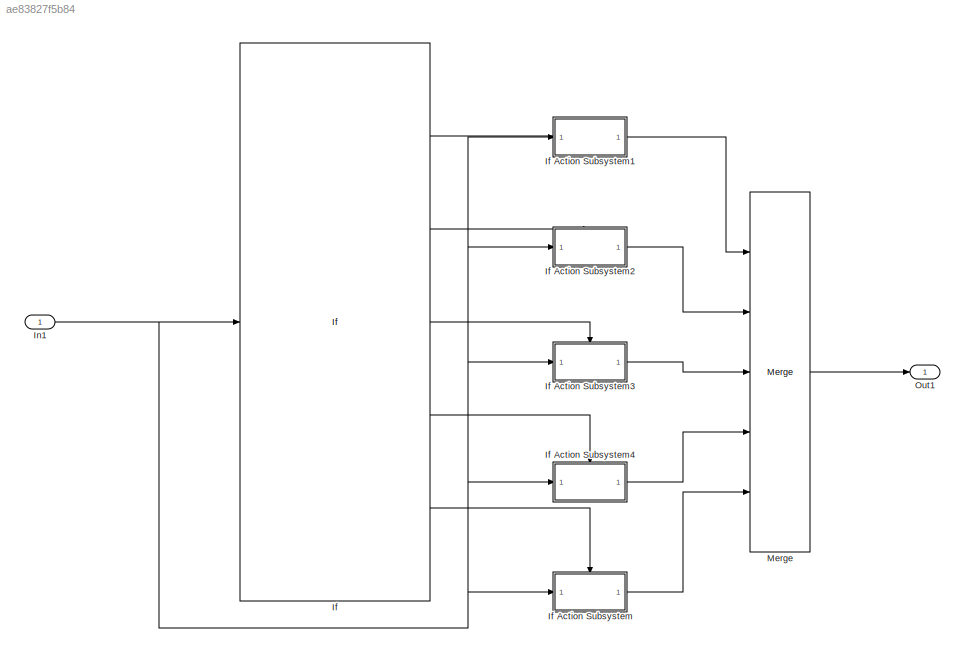
MODEL slx_ae83827f5b84
KIND model
CONFIG AbsTol = auto
CONFIG FixedStep = auto
CONFIG MaxStep = auto
CONFIG MinStep = auto
CONFIG RelTol = 1e-3
CONFIG SampleTimeConstraint = Unconstrained
CONFIG Solver = VariableStepAuto
CONFIG SolverMode = Auto
CONFIG SolverName = VariableStepAuto
CONFIG StartTime = 0.0
CONFIG StopTime = 10.0
BLOCK [If] If
  ElseIfExpressions = u1 > 75 , u1 > 65, u1 > 50
  IfExpression = u1 > 90
  Ports = [1, 5]
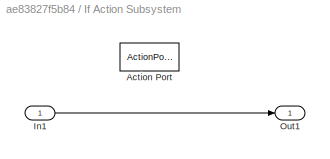
BLOCK [SubSystem] If Action Subsystem
  Ports = [1, 1, 0, 0, 0, 0, 0, 1]
  RequestExecContextInheritance = off
  TreatAsAtomicUnit = on
  Variant = off
BLOCK [ActionPort] If Action Subsystem/Action Port
  ActionType = else
BLOCK [Inport] If Action Subsystem/In1
  IconDisplay = Port number
BLOCK [Outport] If Action Subsystem/Out1
  IconDisplay = Port number
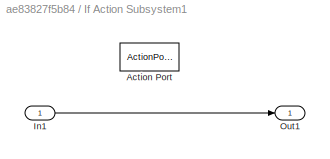
BLOCK [SubSystem] If Action Subsystem1
  Ports = [1, 1, 0, 0, 0, 0, 0, 1]
  RequestExecContextInheritance = off
  TreatAsAtomicUnit = on
  Variant = off
BLOCK [ActionPort] If Action Subsystem1/Action Port
  ActionType = then
BLOCK [Inport] If Action Subsystem1/In1
  IconDisplay = Port number
BLOCK [Outport] If Action Subsystem1/Out1
  IconDisplay = Port number
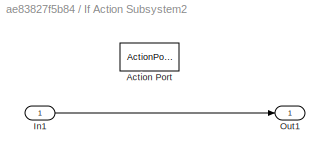
BLOCK [SubSystem] If Action Subsystem2
  Ports = [1, 1, 0, 0, 0, 0, 0, 1]
  RequestExecContextInheritance = off
  TreatAsAtomicUnit = on
  Variant = off
BLOCK [ActionPort] If Action Subsystem2/Action Port
  ActionType = elseif
BLOCK [Inport] If Action Subsystem2/In1
  IconDisplay = Port number
BLOCK [Outport] If Action Subsystem2/Out1
  IconDisplay = Port number
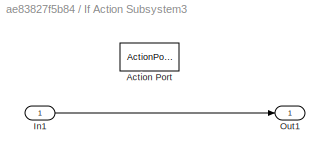
BLOCK [SubSystem] If Action Subsystem3
  Ports = [1, 1, 0, 0, 0, 0, 0, 1]
  RequestExecContextInheritance = off
  TreatAsAtomicUnit = on
  Variant = off
BLOCK [ActionPort] If Action Subsystem3/Action Port
  ActionType = elseif
BLOCK [Inport] If Action Subsystem3/In1
  IconDisplay = Port number
BLOCK [Outport] If Action Subsystem3/Out1
  IconDisplay = Port number
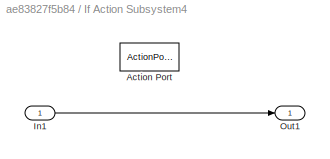
BLOCK [SubSystem] If Action Subsystem4
  Ports = [1, 1, 0, 0, 0, 0, 0, 1]
  RequestExecContextInheritance = off
  TreatAsAtomicUnit = on
  Variant = off
BLOCK [ActionPort] If Action Subsystem4/Action Port
  ActionType = elseif
BLOCK [Inport] If Action Subsystem4/In1
  IconDisplay = Port number
BLOCK [Outport] If Action Subsystem4/Out1
  IconDisplay = Port number
BLOCK [Inport] In1
  IconDisplay = Port number
  OutDataTypeStr = uint8
BLOCK [Merge] Merge
  Inputs = 5
  Ports = [5, 1]
BLOCK [Outport] Out1
  IconDisplay = Port number
LINE If Action Subsystem/In1:1 -> If Action Subsystem/Out1:1
LINE If Action Subsystem1/In1:1 -> If Action Subsystem1/Out1:1
LINE If Action Subsystem1:1 -> Merge:1
LINE If Action Subsystem2/In1:1 -> If Action Subsystem2/Out1:1
LINE If Action Subsystem2:1 -> Merge:2
LINE If Action Subsystem3/In1:1 -> If Action Subsystem3/Out1:1
LINE If Action Subsystem3:1 -> Merge:3
LINE If Action Subsystem4/In1:1 -> If Action Subsystem4/Out1:1
LINE If Action Subsystem4:1 -> Merge:4
LINE If Action Subsystem:1 -> Merge:5
LINE If:1 -> If Action Subsystem1:ifaction
LINE If:2 -> If Action Subsystem2:ifaction
LINE If:3 -> If Action Subsystem3:ifaction
LINE If:4 -> If Action Subsystem4:ifaction
LINE If:5 -> If Action Subsystem:ifaction
NET In1:1 -> If Action Subsystem1:1, If Action Subsystem2:1, If Action Subsystem3:1, If Action Subsystem4:1, If Action Subsystem:1, If:1
LINE Merge:1 -> Out1:1
note: NET lines group one-source signal fan-out (src -> all destinations, sorted); 1:1 wires keep LINE
